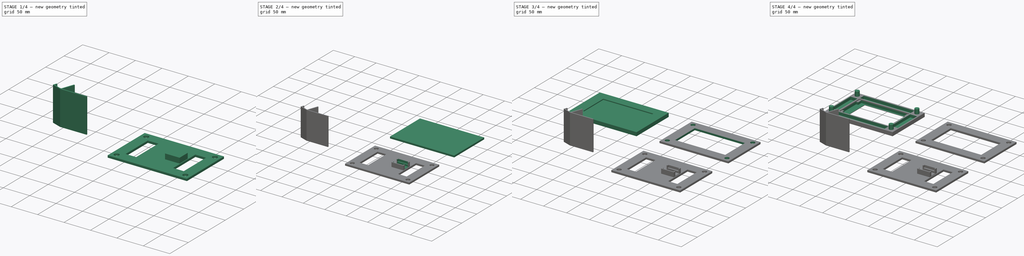
[diagram: build sequence overview — one tinted view per stage of 4, left to right]
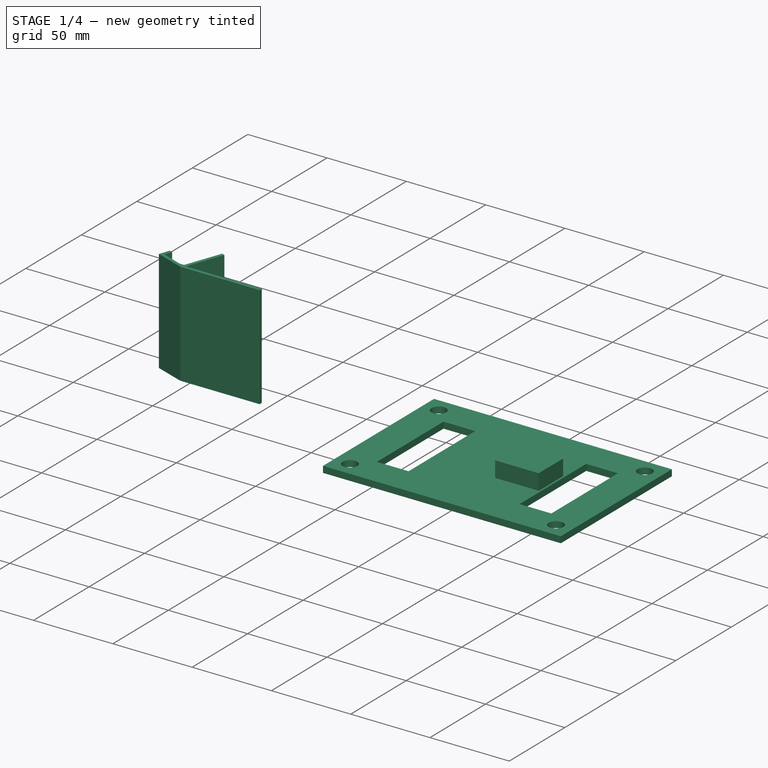
[diagram: stage 1 of 4 — iso view after this stage's code; geometry added in this stage tinted green]
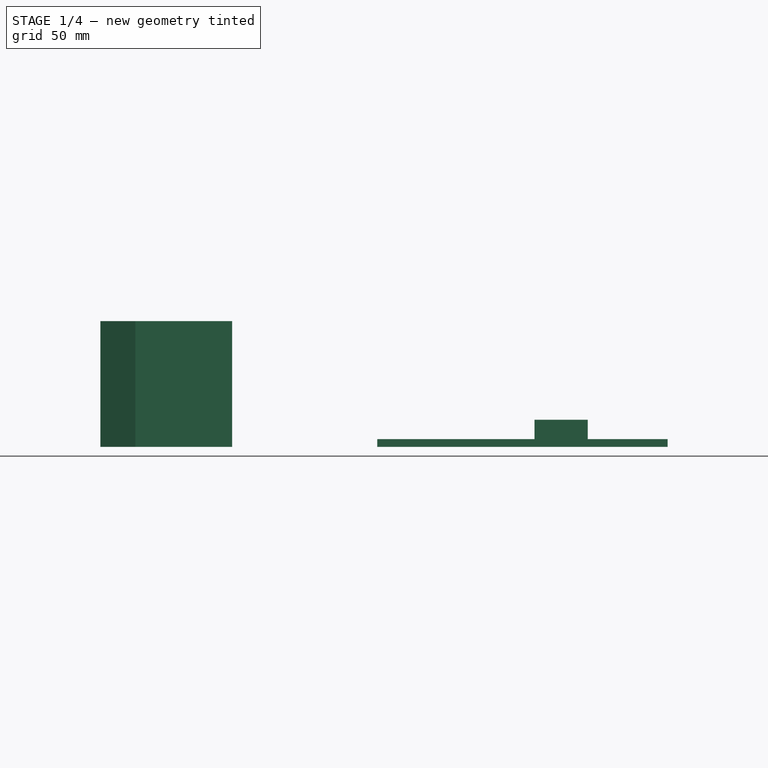
[diagram: stage 1 of 4 — front view after this stage's code; geometry added in this stage tinted green]
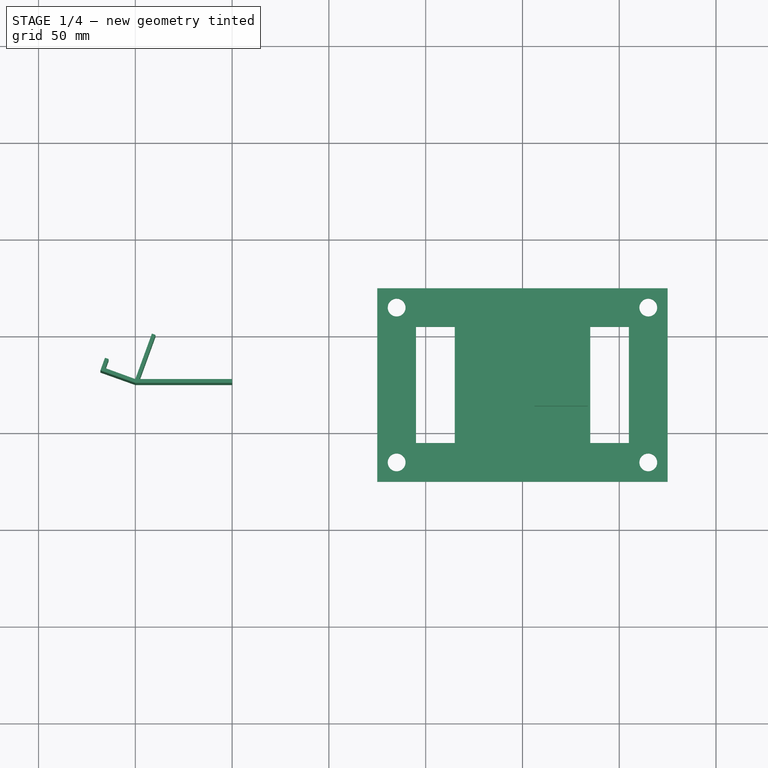
[diagram: stage 1 of 4 — top view after this stage's code; geometry added in this stage tinted green]
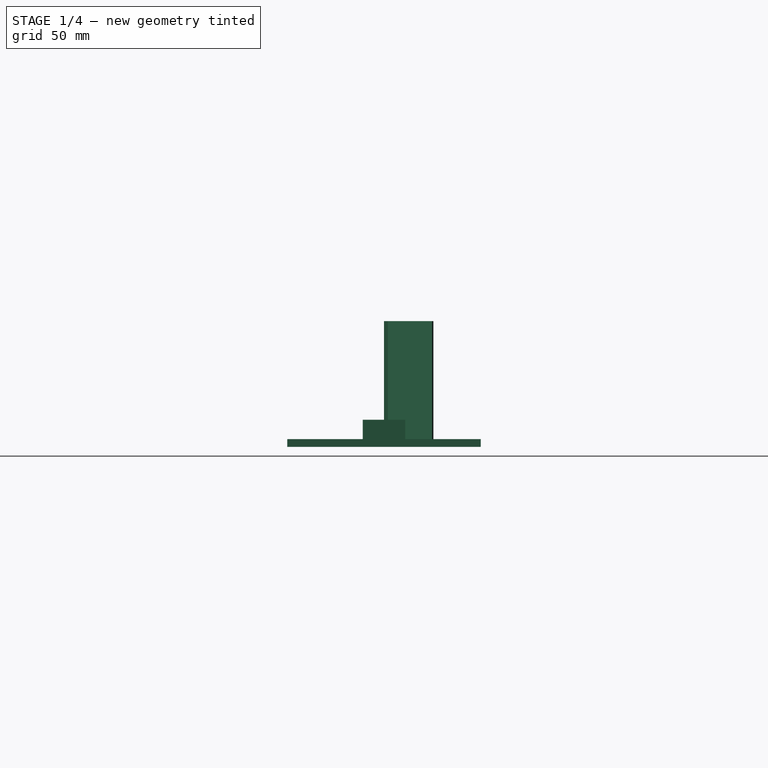
[diagram: stage 1 of 4 — right view after this stage's code; geometry added in this stage tinted green]
FCSTD DOCUMENT  (FreeCAD 0.21R33771 (Git))
Label: FrameLCD
License: All rights reserved
LicenseURL: https://en.wikipedia.org/wiki/All_rights_reserved
objects: Sketcher::SketchObject×14, PartDesign::Pocket×8, PartDesign::Pad×6, PartDesign::Body×4
note: 46 computed .brp shape members not serialized (recipe doc carries the construction recipe); baked Part::Feature solids carry a one-line shape summary decoded from their .brp

FEATURE [PartDesign::Body] Body001  label="Spacer"
  Group = -> [Sketch006,Pad002,Sketch010,Pocket004]
  Origin = -> Origin001
  Tip = -> Pocket004
FEATURE [Sketcher::SketchObject] Sketch011  label="BackSketch"
  FullyConstrained = true
  MapMode = 5
  Support = -> [XY_Plane002]
  sketch-geometry (4):
    g0: LineSegment StartX=175 StartY=-125 StartZ=0 EndX=25 EndY=-125 EndZ=0
    g1: LineSegment StartX=25 StartY=-125 StartZ=0 EndX=25 EndY=-25 EndZ=0
    g2: LineSegment StartX=25 StartY=-25 StartZ=0 EndX=175 EndY=-25 EndZ=0
    g3: LineSegment StartX=175 StartY=-25 StartZ=0 EndX=175 EndY=-125 EndZ=0
  constraints (12):
    c: Coincident(g0,g1)
    c: Coincident(g1,g2)
    c: Coincident(g2,g3)
    c: Coincident(g3,g0)
    c: Horizontal(g0)
    c: Horizontal(g2)
    c: Vertical(g1)
    c: Vertical(g3)
    c: Distance(g3) = 100
    c: Distance(g0) = 150
    c: DistanceX(g1,g-1) = -25
    c: DistanceY(g1,g-1) = 25
FEATURE [PartDesign::Pad] Pad003  label="BackPad"
  Direction = (0,0,1)
  Length = 4
  Length2 = 10
  Profile = -> Sketch011
  ReferenceAxis = -> Sketch011 [N_Axis]
  Type = 0
FEATURE [Sketcher::SketchObject] Sketch012  label="BackCutoutsSketch"
  ExternalGeometry = -> [Pad003]
  FullyConstrained = true
  MapMode = 5
  Placement = pos=(0,0,4) rot=(0,0,1;0rad)
  Support = -> [Pad003]
  sketch-geometry (13):
    g0: Circle CenterX=35 CenterY=-35 CenterZ=0 NormalX=0 NormalY=0 NormalZ=1 AngleXU=0 Radius=4.6
    g1: Circle CenterX=165 CenterY=-35 CenterZ=0 NormalX=0 NormalY=0 NormalZ=1 AngleXU=0 Radius=4.6
    g2: Circle CenterX=165 CenterY=-115 CenterZ=0 NormalX=0 NormalY=0 NormalZ=1 AngleXU=0 Radius=4.6
    g3: Circle CenterX=35 CenterY=-115 CenterZ=0 NormalX=0 NormalY=0 NormalZ=1 AngleXU=0 Radius=4.6
    g4: LineSegment StartX=45 StartY=-105 StartZ=0 EndX=45 EndY=-45 EndZ=0
    g5: LineSegment StartX=155 StartY=-45 StartZ=0 EndX=155 EndY=-105 EndZ=0
    g6: GeomPoint X=100 Y=-75 Z=0
    g7: LineSegment StartX=45 StartY=-45 StartZ=0 EndX=65 EndY=-45 EndZ=0
    g8: LineSegment StartX=135 StartY=-45 StartZ=0 EndX=155 EndY=-45 EndZ=0
    g9: LineSegment StartX=155 StartY=-105 StartZ=0 EndX=135 EndY=-105 EndZ=0
    g10: LineSegment StartX=65 StartY=-105 StartZ=0 EndX=45 EndY=-105 EndZ=0
    g11: LineSegment StartX=65 StartY=-45 StartZ=0 EndX=65 EndY=-105 EndZ=0
    g12: LineSegment StartX=135 StartY=-105 StartZ=0 EndX=135 EndY=-45 EndZ=0
  constraints (37):
    c: Equal(g0,g1)
    c: Equal(g0,g2)
    c: Equal(g0,g3)
    c: Radius(g0) = 4.6
    c: DistanceX(g0,g-4) = -10
    c: DistanceY(g0,g-4) = 10
    c: DistanceX(g3,g-5) = -10
    c: DistanceY(g3,g-5) = -10
    c: DistanceX(g-6,g2) = -10
    c: DistanceY(g-6,g2) = 10
    c: DistanceX(g1,g-6) = 10
    c: DistanceY(g1,g-6) = 10
    c: Coincident(g4,g7)
    c: Coincident(g5,g9)
    c: Coincident(g10,g4)
    c: Vertical(g4)
    c: Vertical(g5)
    c: Symmetric(g8,g4,g6)
    c: DistanceX(g4,g-4) = -20
    c: DistanceY(g4,g-4) = 20
    c: DistanceX(g5,g-6) = 20
    c: DistanceY(g5,g-6) = -20
    c: Coincident(g8,g5)
    c: Horizontal(g7)
    c: Horizontal(g8)
    c: Horizontal(g9)
    c: Horizontal(g10)
    c: Vertical(g11)
    c: Vertical(g12)
    c: Coincident(g12,g8)
    c: Coincident(g11,g7)
    c: Coincident(g11,g10)
    c: Coincident(g12,g9)
    c: Distance(g7) = 20
    c: Distance(g8) = 20
    c: DistanceY(g5,g-6) = 20
    c: DistanceY(g4,g-5) = -20
FEATURE [PartDesign::Pocket] Pocket005  label="BackCutoutsPocket"
  BaseFeature = -> Pad003
  Direction = (0,0,-1)
  Length = 5
  Length2 = 5
  Profile = -> Sketch012
  ReferenceAxis = -> Sketch012 [N_Axis]
  Type = 1
FEATURE [Sketcher::SketchObject] Sketch013  label="BackMountSketch"
  ExternalGeometry = -> [Pad003]
  FullyConstrained = true
  MapMode = 5
  Placement = pos=(0,0,4) rot=(0,0,1;0rad)
  Support = -> [Pad003]
  sketch-geometry (5):
    g0: LineSegment StartX=106.25 StartY=-64 StartZ=0 EndX=106.25 EndY=-86 EndZ=0
    g1: LineSegment StartX=106.25 StartY=-86 StartZ=0 EndX=133.75 EndY=-86 EndZ=0
    g2: LineSegment StartX=133.75 StartY=-86 StartZ=0 EndX=133.75 EndY=-64 EndZ=0
    g3: LineSegment StartX=133.75 StartY=-64 StartZ=0 EndX=106.25 EndY=-64 EndZ=0
    g4: GeomPoint X=120 Y=-75 Z=0
  constraints (13):
    c: Coincident(g0,g1)
    c: Coincident(g1,g2)
    c: Coincident(g2,g3)
    c: Coincident(g3,g0)
    c: Horizontal(g1)
    c: Horizontal(g3)
    c: Vertical(g0)
    c: Vertical(g2)
    c: Symmetric(g1,g0,g4)
    c: DistanceX(g4,g-4) = 55
    c: DistanceY(g4,g-4) = 50
    c: Distance(g3) = 27.5
    c: Distance(g2) = 22
FEATURE [PartDesign::Pad] Pad004  label="BackMountPad"
  BaseFeature = -> Pocket005
  Direction = (0,0,1)
  Length = 10
  Length2 = 10
  Profile = -> Sketch013
  ReferenceAxis = -> Sketch013 [N_Axis]
  Type = 0
FEATURE [PartDesign::Body] Body002  label="Back"
  Group = -> [Sketch011,Pad003,Sketch012,Pocket005,Sketch013,Pad004,Sketch014,Pocket006,Sketch015,Pocket007]
  Origin = -> Origin002
  Tip = -> Pocket007
FEATURE [Sketcher::SketchObject] Sketch017  label="StandSketch"
  FullyConstrained = true
  MapMode = 5
  Support = -> [XY_Plane004]
  sketch-geometry (11):
    g0: LineSegment StartX=-100 StartY=-75 StartZ=0 EndX=-50 EndY=-75 EndZ=0
    g1: LineSegment StartX=-50 StartY=-75 StartZ=0 EndX=-50 EndY=-73 EndZ=0
    g2: LineSegment StartX=-50 StartY=-73 StartZ=0 EndX=-97.8717 EndY=-73 EndZ=0
    g3: LineSegment StartX=-97.8717 StartY=-73 StartZ=0 EndX=-89.5701 EndY=-50.1917 EndZ=0
    g4: LineSegment StartX=-89.5701 StartY=-50.1917 StartZ=0 EndX=-91.4495 EndY=-49.5077 EndZ=0
    g5: LineSegment StartX=-91.4495 StartY=-49.5077 StartZ=0 EndX=-100 EndY=-73 EndZ=0
    g6: LineSegment StartX=-100 StartY=-73 StartZ=0 EndX=-115.505 EndY=-67.3567 EndZ=0
    g7: LineSegment StartX=-118.068 StartY=-68.552 StartZ=0 EndX=-100 EndY=-75 EndZ=0
    g8: LineSegment StartX=-118.068 StartY=-68.552 StartZ=0 EndX=-115.674 EndY=-61.9742 EndZ=0
    g9: LineSegment StartX=-115.674 StartY=-61.9742 StartZ=0 EndX=-113.795 EndY=-62.6582 EndZ=0
    g10: LineSegment StartX=-113.795 StartY=-62.6582 StartZ=0 EndX=-115.505 EndY=-67.3567 EndZ=0
  constraints (33):
    c: Horizontal(g0)
    c: Coincident(g0,g1)
    c: Vertical(g1)
    c: Coincident(g1,g2)
    c: Horizontal(g2)
    c: Coincident(g2,g3)
    c: Coincident(g3,g4)
    c: Coincident(g4,g5)
    c: Coincident(g5,g6)
    c: Coincident(g0,g7)
    c: Distance(g4) = 2
    c: Distance(g1) = 2
    c: Distance(g0) = 50
    c: Coincident(g8,g9)
    c: Coincident(g9,g10)
    c: Coincident(g6,g10)
    c: Coincident(g7,g8)
    c: Distance(g9) = 2
    c: Distance(g10) = 5
    c: Distance(g5) = 25
    c: Angle(g5,g6) = 1.5708
    c: DistanceY(g2,g5) = 0
    c: Angle(g6,g10) = 1.5708
    c: Distance(g8) = 7
    c: Angle(g9,g10) = 1.5708
    c: Angle(g8,g9) = 1.5708
    c: Angle(g5,g4) = 1.5708
    c: Angle(g4,g3) = 1.5708
    c: Distance(g6) = 16.5
    c: Distance(g0,g5) = 2
    c: Angle(g2,g3) = 1.22173
    c: DistanceX(g0,g-1) = 100
    c: DistanceY(g0,g-1) = 75
FEATURE [PartDesign::Pad] Pad005  label="StandPad"
  Direction = (0,0,1)
  Length = 65
  Length2 = 10
  Profile = -> Sketch017
  ReferenceAxis = -> Sketch017 [N_Axis]
  Type = 0
FEATURE [PartDesign::Body] Body004  label="Stand"
  Group = -> [Sketch017,Pad005]
  Origin = -> Origin004
  Tip = -> Pad005
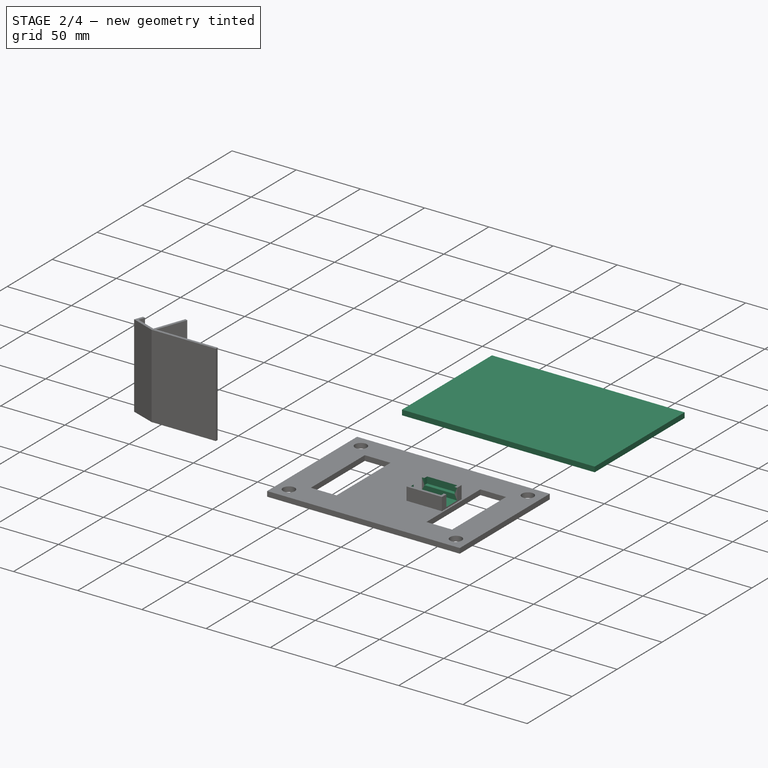
[diagram: stage 2 of 4 — iso view after this stage's code; geometry added in this stage tinted green]
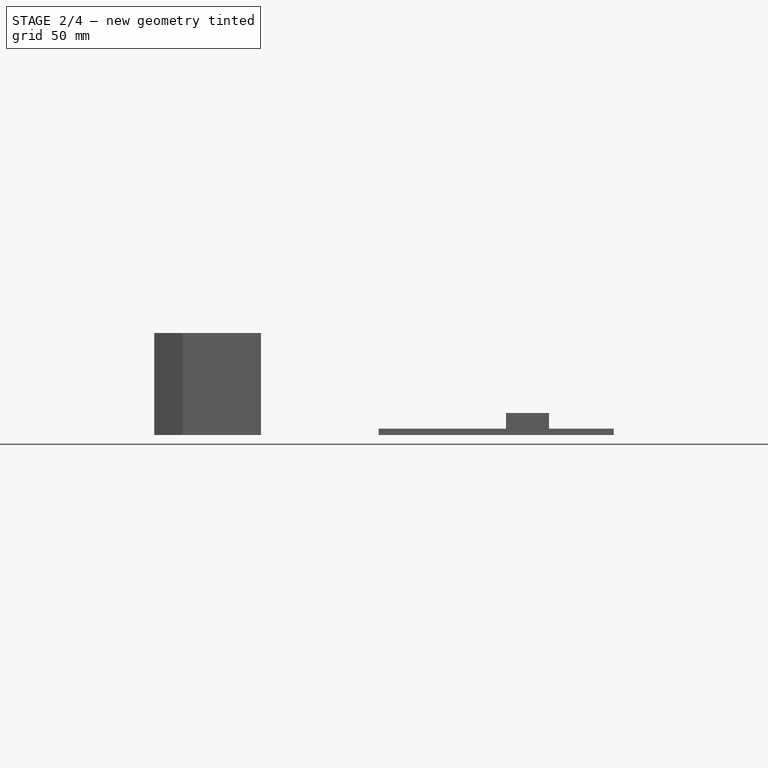
[diagram: stage 2 of 4 — front view after this stage's code; geometry added in this stage tinted green]
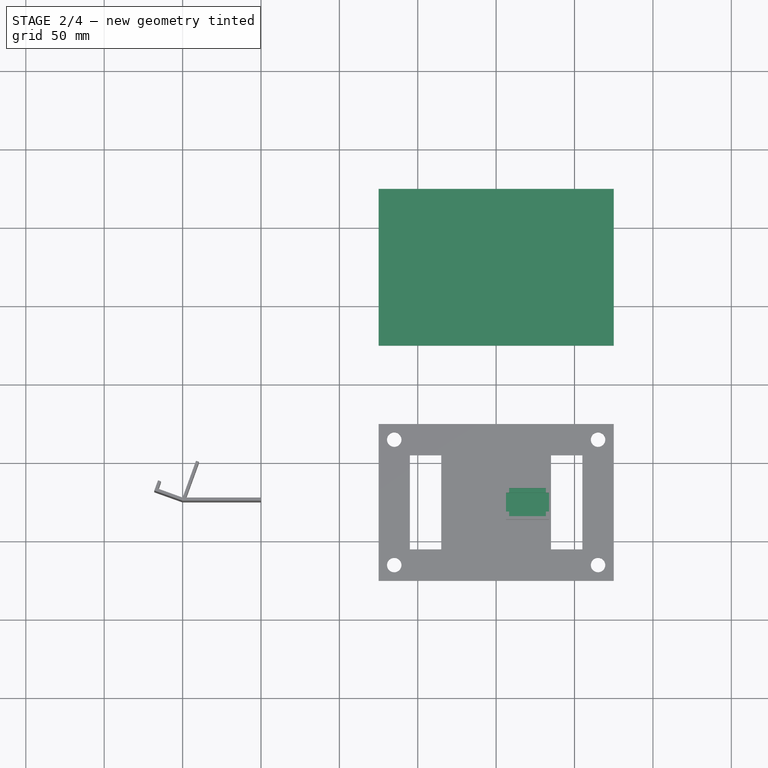
[diagram: stage 2 of 4 — top view after this stage's code; geometry added in this stage tinted green]
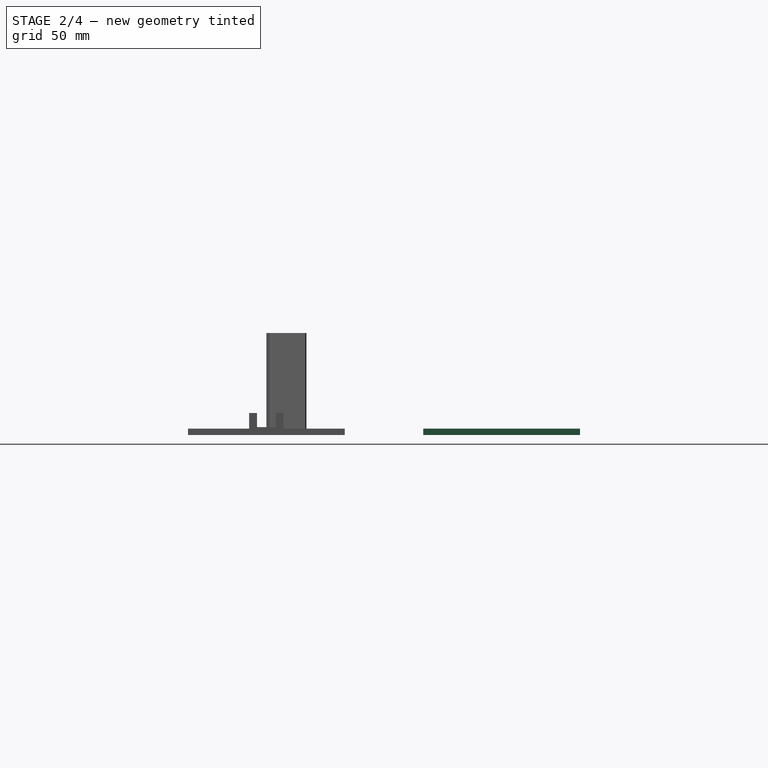
[diagram: stage 2 of 4 — right view after this stage's code; geometry added in this stage tinted green]
FEATURE [PartDesign::Body] Body  label="Front"
  Group = -> [Sketch,Pad,Sketch001,Pocket,Sketch002,Pocket001,Sketch003,Pocket002,Sketch004,Pad001,Sketch005,Pocket003]
  Origin = -> Origin
  Tip = -> Pocket003
FEATURE [Sketcher::SketchObject] Sketch006  label="SpacerSketch"
  FullyConstrained = true
  MapMode = 5
  Support = -> [XY_Plane001]
  sketch-geometry (4):
    g0: LineSegment StartX=175 StartY=25 StartZ=0 EndX=25 EndY=25 EndZ=0
    g1: LineSegment StartX=25 StartY=25 StartZ=0 EndX=25 EndY=125 EndZ=0
    g2: LineSegment StartX=25 StartY=125 StartZ=0 EndX=175 EndY=125 EndZ=0
    g3: LineSegment StartX=175 StartY=125 StartZ=0 EndX=175 EndY=25 EndZ=0
  constraints (12):
    c: Coincident(g0,g1)
    c: Coincident(g1,g2)
    c: Coincident(g2,g3)
    c: Coincident(g3,g0)
    c: Horizontal(g0)
    c: Horizontal(g2)
    c: Vertical(g1)
    c: Vertical(g3)
    c: Distance(g3) = 100
    c: Distance(g0) = 150
    c: DistanceX(g0,g-1) = -25
    c: DistanceY(g0,g-1) = -25
FEATURE [PartDesign::Pad] Pad002  label="SpacerPad"
  Direction = (0,0,1)
  Length = 4
  Length2 = 10
  Profile = -> Sketch006
  ReferenceAxis = -> Sketch006 [N_Axis]
  Type = 0
FEATURE [Sketcher::SketchObject] Sketch014  label="BackMountCut1Sketch"
  ExternalGeometry = -> [Pad004]
  FullyConstrained = true
  MapMode = 5
  Placement = pos=(0,0,14) rot=(0,0,1;0rad)
  Support = -> [Pad004]
  sketch-geometry (4):
    g0: LineSegment StartX=108.25 StartY=-66 StartZ=0 EndX=131.75 EndY=-66 EndZ=0
    g1: LineSegment StartX=131.75 StartY=-66 StartZ=0 EndX=131.75 EndY=-84 EndZ=0
    g2: LineSegment StartX=131.75 StartY=-84 StartZ=0 EndX=108.25 EndY=-84 EndZ=0
    g3: LineSegment StartX=108.25 StartY=-84 StartZ=0 EndX=108.25 EndY=-66 EndZ=0
  constraints (12):
    c: Coincident(g0,g1)
    c: Coincident(g1,g2)
    c: Coincident(g2,g3)
    c: Coincident(g3,g0)
    c: Horizontal(g0)
    c: Horizontal(g2)
    c: Vertical(g1)
    c: Vertical(g3)
    c: DistanceX(g0,g-6) = -2
    c: DistanceY(g0,g-6) = 2
    c: DistanceX(g1,g-5) = 2
    c: DistanceY(g1,g-5) = -2
FEATURE [PartDesign::Pocket] Pocket006  label="BackMountCut1Pocket"
  BaseFeature = -> Pad004
  Direction = (0,0,-1)
  Length = 5
  Length2 = 5
  Profile = -> Sketch014
  ReferenceAxis = -> Sketch014 [N_Axis]
  Type = 0
FEATURE [Sketcher::SketchObject] Sketch015  label="BackMountCut2Sketch"
  ExternalGeometry = -> [Pocket006]
  FullyConstrained = true
  MapMode = 5
  Placement = pos=(0,0,14) rot=(0,0,1;0rad)
  Support = -> [Pocket006]
  sketch-geometry (4):
    g0: LineSegment StartX=106.25 StartY=-69 StartZ=0 EndX=133.75 EndY=-69 EndZ=0
    g1: LineSegment StartX=133.75 StartY=-69 StartZ=0 EndX=133.75 EndY=-81 EndZ=0
    g2: LineSegment StartX=133.75 StartY=-81 StartZ=0 EndX=106.25 EndY=-81 EndZ=0
    g3: LineSegment StartX=106.25 StartY=-81 StartZ=0 EndX=106.25 EndY=-69 EndZ=0
  constraints (12):
    c: Coincident(g0,g1)
    c: Coincident(g1,g2)
    c: Coincident(g2,g3)
    c: Coincident(g3,g0)
    c: Horizontal(g0)
    c: Horizontal(g2)
    c: Vertical(g1)
    c: Vertical(g3)
    c: DistanceY(g0,g-4) = 5
    c: PointOnObject(g0,g-4)
    c: DistanceY(g-5,g2) = 5
    c: PointOnObject(g0,g-6)
FEATURE [PartDesign::Pocket] Pocket007  label="BackMountCut2Pocket"
  BaseFeature = -> Pocket006
  Direction = (0,0,-1)
  Length = 9
  Length2 = 5
  Profile = -> Sketch015
  ReferenceAxis = -> Sketch015 [N_Axis]
  Type = 0
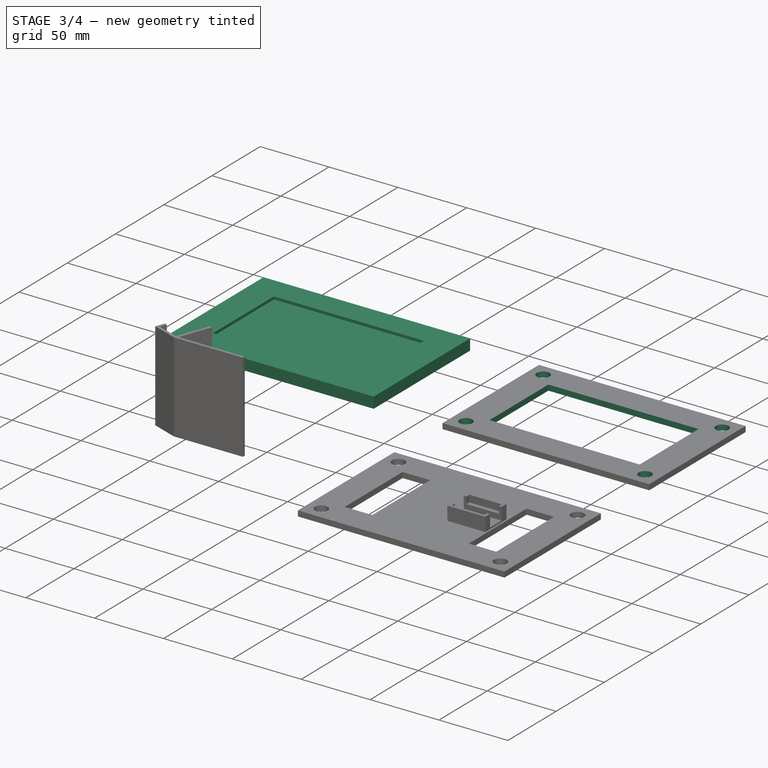
[diagram: stage 3 of 4 — iso view after this stage's code; geometry added in this stage tinted green]
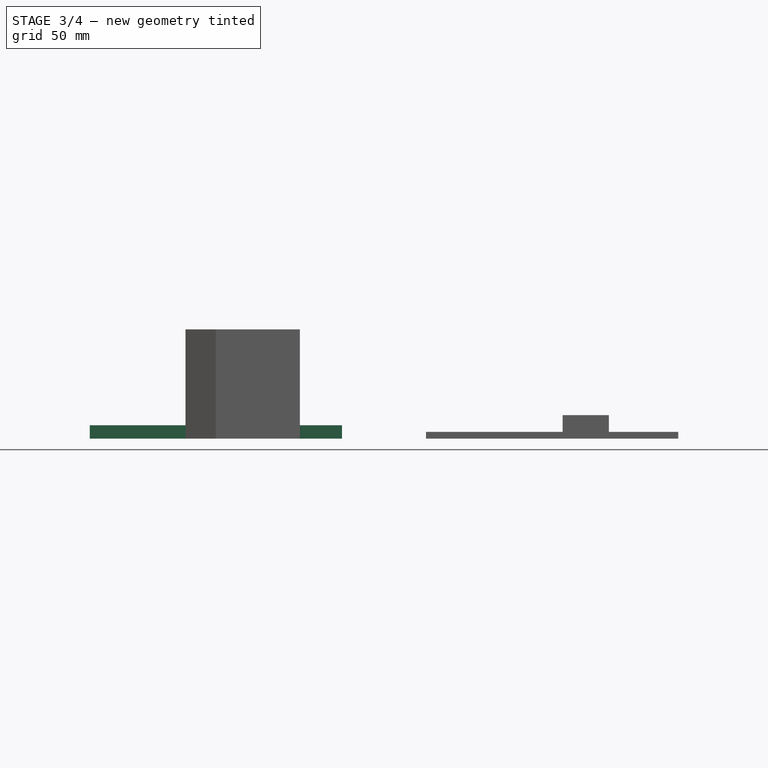
[diagram: stage 3 of 4 — front view after this stage's code; geometry added in this stage tinted green]
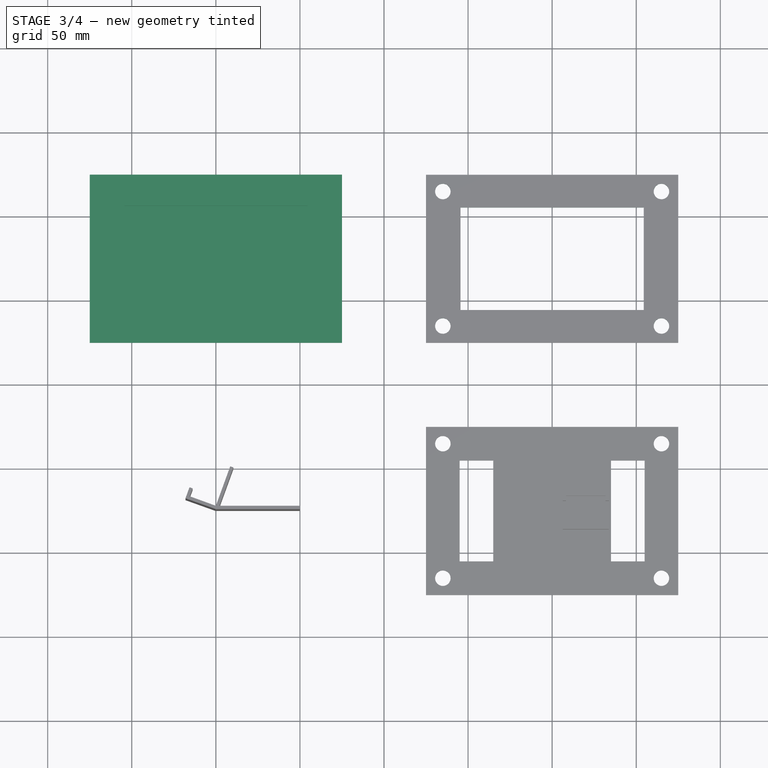
[diagram: stage 3 of 4 — top view after this stage's code; geometry added in this stage tinted green]
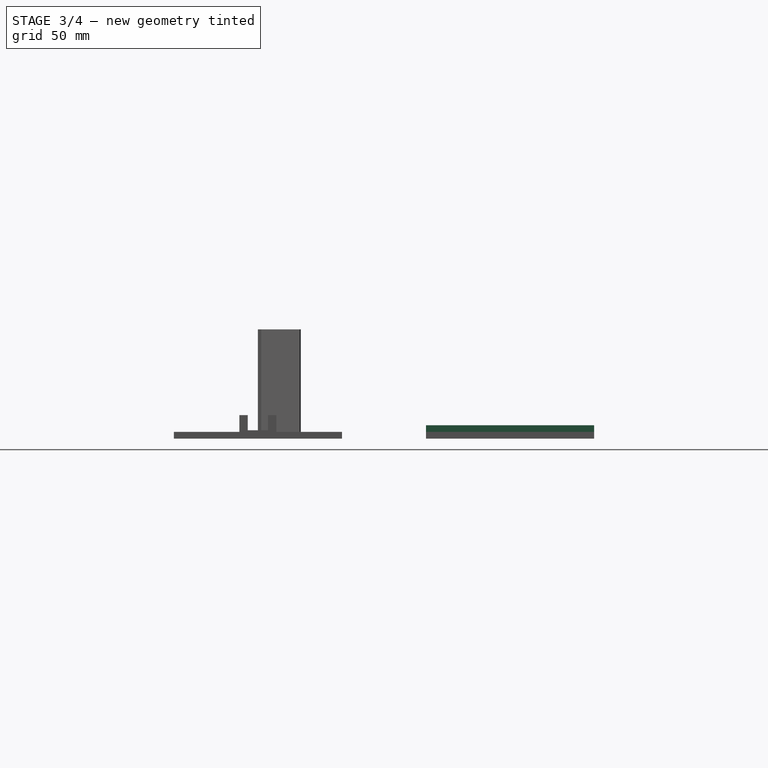
[diagram: stage 3 of 4 — right view after this stage's code; geometry added in this stage tinted green]
FEATURE [Sketcher::SketchObject] Sketch  label="FrontSketch"
  FullyConstrained = true
  MapMode = 5
  Support = -> [XY_Plane]
  sketch-geometry (4):
    g0: LineSegment StartX=-25 StartY=25 StartZ=0 EndX=-175 EndY=25 EndZ=0
    g1: LineSegment StartX=-175 StartY=25 StartZ=0 EndX=-175 EndY=125 EndZ=0
    g2: LineSegment StartX=-175 StartY=125 StartZ=0 EndX=-25 EndY=125 EndZ=0
    g3: LineSegment StartX=-25 StartY=125 StartZ=0 EndX=-25 EndY=25 EndZ=0
  constraints (12):
    c: Coincident(g0,g1)
    c: Coincident(g1,g2)
    c: Coincident(g2,g3)
    c: Coincident(g3,g0)
    c: Horizontal(g0)
    c: Horizontal(g2)
    c: Vertical(g1)
    c: Vertical(g3)
    c: DistanceX(g0,g-1) = 25
    c: DistanceY(g-1,g0) = 25
    c: Distance(g3) = 100
    c: Distance(g0) = 150
FEATURE [PartDesign::Pad] Pad  label="FrontPad"
  Direction = (0,0,1)
  Length = 8
  Length2 = 10
  Profile = -> Sketch
  ReferenceAxis = -> Sketch [N_Axis]
  Type = 0
FEATURE [Sketcher::SketchObject] Sketch001  label="BoardRecessSketch"
  ExternalGeometry = -> [Pad]
  FullyConstrained = true
  MapMode = 5
  Placement = pos=(0,0,8) rot=(0,0,1;0rad)
  Support = -> [Pad]
  sketch-geometry (5):
    g0: LineSegment StartX=-154.5 StartY=106.5 StartZ=0 EndX=-154.5 EndY=43.5 EndZ=0
    g1: LineSegment StartX=-154.5 StartY=43.5 StartZ=0 EndX=-45.5 EndY=43.5 EndZ=0
    g2: LineSegment StartX=-45.5 StartY=43.5 StartZ=0 EndX=-45.5 EndY=106.5 EndZ=0
    g3: LineSegment StartX=-45.5 StartY=106.5 StartZ=0 EndX=-154.5 EndY=106.5 EndZ=0
    g4: GeomPoint X=-100 Y=75 Z=0
  constraints (13):
    c: Coincident(g0,g1)
    c: Coincident(g1,g2)
    c: Coincident(g2,g3)
    c: Coincident(g3,g0)
    c: Horizontal(g1)
    c: Horizontal(g3)
    c: Vertical(g0)
    c: Vertical(g2)
    c: Symmetric(g1,g0,g4)
    c: DistanceX(g4,g-6) = 75
    c: DistanceY(g-6,g4) = 50
    c: Distance(g0) = 63
    c: Distance(g3) = 109
FEATURE [PartDesign::Pocket] Pocket  label="BoardRecessPocket"
  BaseFeature = -> Pad
  Direction = (0,0,-1)
  Length = 2
  Length2 = 5
  Profile = -> Sketch001
  ReferenceAxis = -> Sketch001 [N_Axis]
  Type = 0
FEATURE [Sketcher::SketchObject] Sketch010  label="SpacerCutoutsSketch"
  ExternalGeometry = -> [Pad002]
  FullyConstrained = true
  MapMode = 5
  Placement = pos=(0,0,4) rot=(0,0,1;0rad)
  Support = -> [Pad002]
  sketch-geometry (9):
    g0: Circle CenterX=35 CenterY=115 CenterZ=0 NormalX=0 NormalY=0 NormalZ=1 AngleXU=0 Radius=4.6
    g1: Circle CenterX=165 CenterY=115 CenterZ=0 NormalX=0 NormalY=0 NormalZ=1 AngleXU=0 Radius=4.6
    g2: Circle CenterX=165 CenterY=35 CenterZ=0 NormalX=0 NormalY=0 NormalZ=1 AngleXU=0 Radius=4.6
    g3: Circle CenterX=35 CenterY=35 CenterZ=0 NormalX=0 NormalY=0 NormalZ=1 AngleXU=0 Radius=4.6
    g4: LineSegment StartX=45.5 StartY=44.5 StartZ=0 EndX=45.5 EndY=105.5 EndZ=0
    g5: LineSegment StartX=45.5 StartY=105.5 StartZ=0 EndX=154.5 EndY=105.5 EndZ=0
    g6: LineSegment StartX=154.5 StartY=105.5 StartZ=0 EndX=154.5 EndY=44.5 EndZ=0
    g7: LineSegment StartX=154.5 StartY=44.5 StartZ=0 EndX=45.5 EndY=44.5 EndZ=0
    g8: GeomPoint X=100 Y=75 Z=0
  constraints (25):
    c: Equal(g0,g1)
    c: Equal(g0,g2)
    c: Equal(g0,g3)
    c: Radius(g0) = 4.6
    c: DistanceX(g0,g-4) = -10
    c: DistanceY(g0,g-4) = 10
    c: DistanceX(g3,g-5) = -10
    c: DistanceY(g3,g-5) = -10
    c: DistanceX(g-6,g2) = -10
    c: DistanceY(g-6,g2) = 10
    c: DistanceX(g1,g-6) = 10
    c: DistanceY(g1,g-6) = 10
    c: Coincident(g4,g5)
    c: Coincident(g6,g7)
    c: Coincident(g7,g4)
    c: Horizontal(g5)
    c: Horizontal(g7)
    c: Vertical(g4)
    c: Vertical(g6)
    c: Symmetric(g5,g4,g8)
    c: DistanceX(g4,g-4) = -20.5
    c: DistanceY(g4,g-4) = 19.5
    c: DistanceX(g6,g-6) = 20.5
    c: DistanceY(g6,g-6) = -19.5
    c: Coincident(g5,g6)
FEATURE [PartDesign::Pocket] Pocket004  label="SpacerCutoutsPocket"
  BaseFeature = -> Pad002
  Direction = (0,0,-1)
  Length = 5
  Length2 = 5
  Profile = -> Sketch010
  ReferenceAxis = -> Sketch010 [N_Axis]
  Type = 1
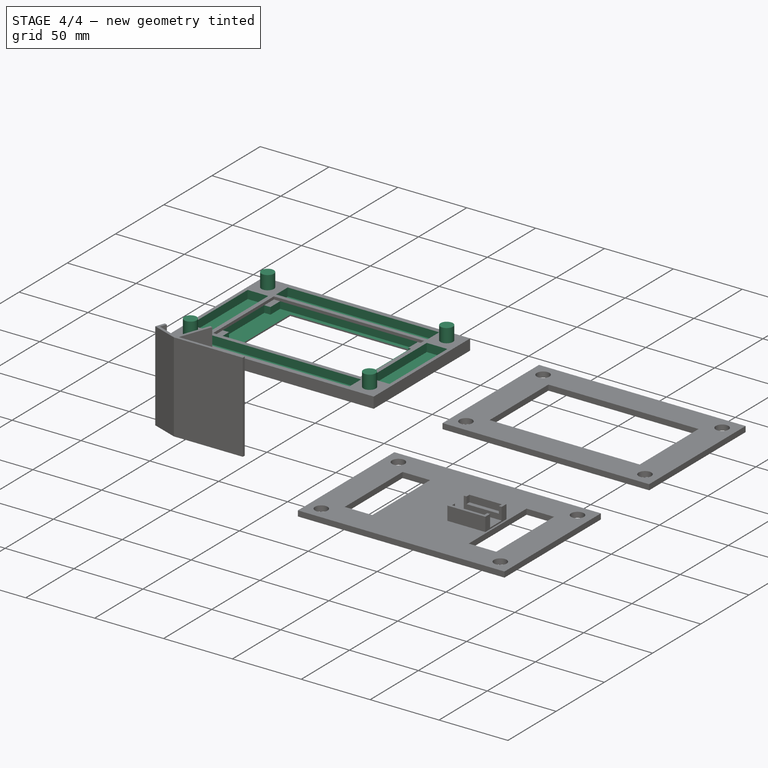
[diagram: stage 4 of 4 — iso view after this stage's code; geometry added in this stage tinted green]
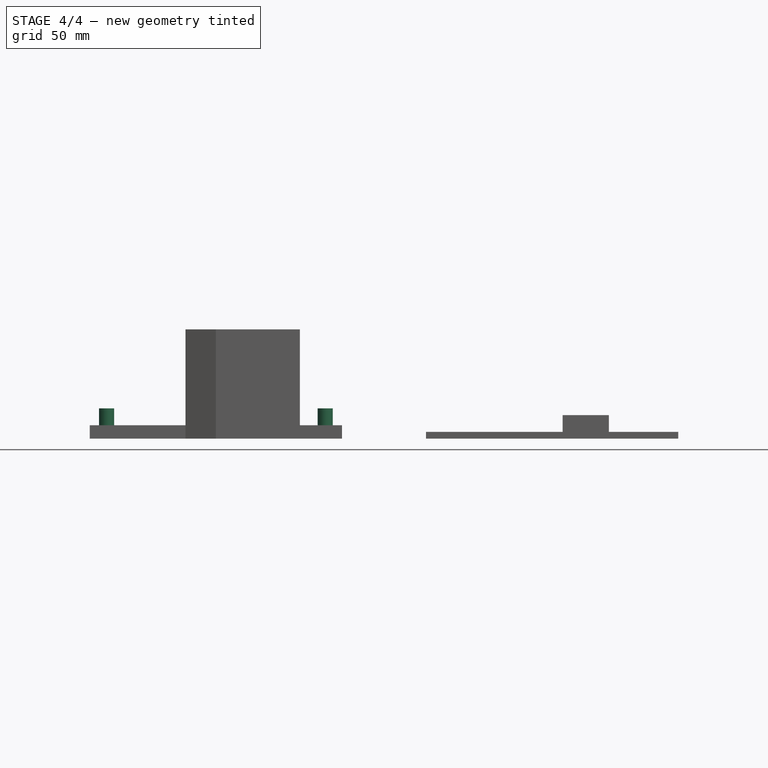
[diagram: stage 4 of 4 — front view after this stage's code; geometry added in this stage tinted green]
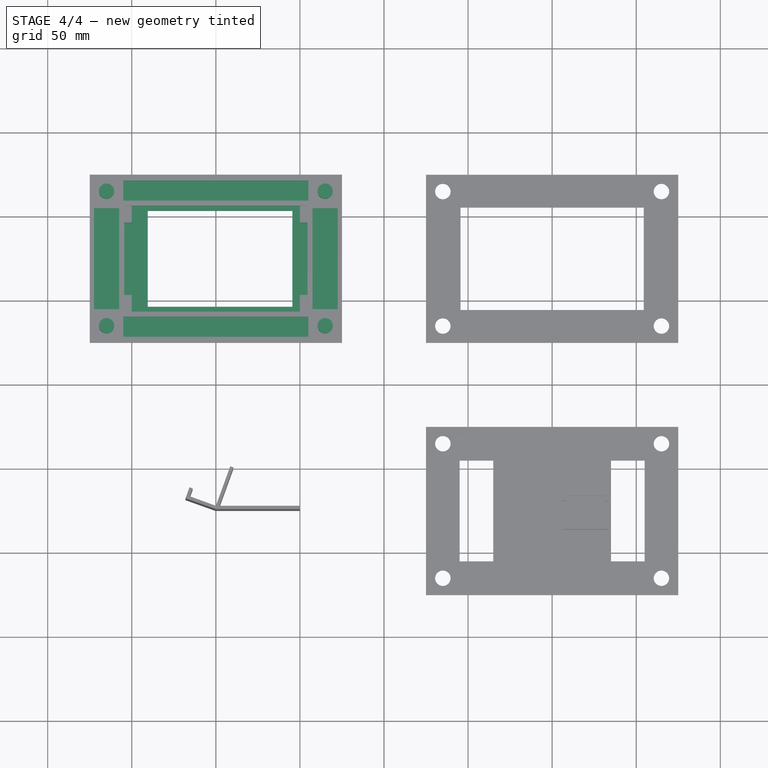
[diagram: stage 4 of 4 — top view after this stage's code; geometry added in this stage tinted green]
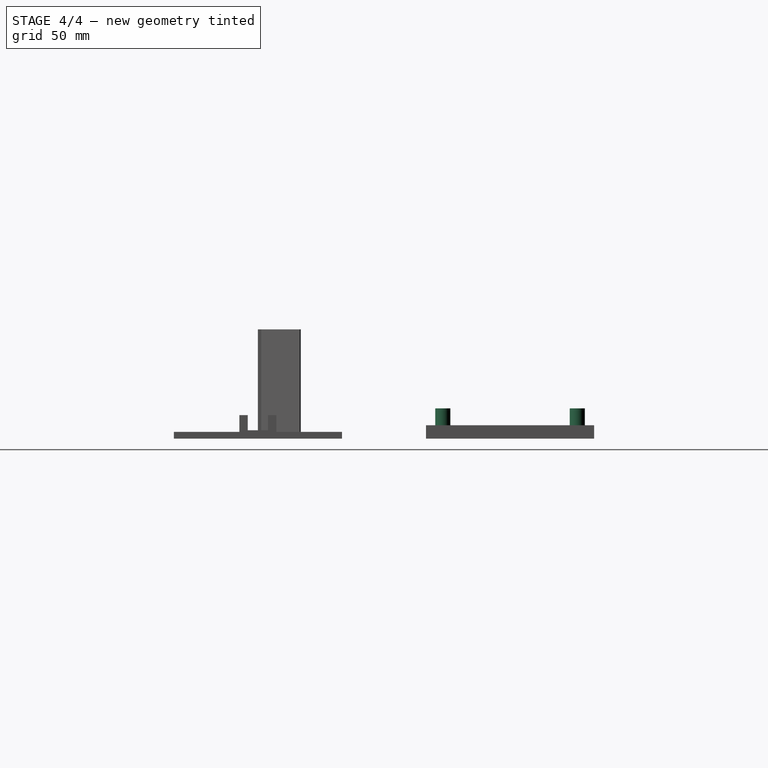
[diagram: stage 4 of 4 — right view after this stage's code; geometry added in this stage tinted green]
FEATURE [Sketcher::SketchObject] Sketch002  label="ScreenRecessSketch"
  ExternalGeometry = -> [Pocket]
  FullyConstrained = true
  MapMode = 5
  Placement = pos=(0,0,6) rot=(0,0,1;0rad)
  Support = -> [Pocket]
  sketch-geometry (13):
    g0: LineSegment StartX=-150 StartY=43.5 StartZ=0 EndX=-50 EndY=43.5 EndZ=0
    g1: LineSegment StartX=-50 StartY=106.5 StartZ=0 EndX=-150 EndY=106.5 EndZ=0
    g2: GeomPoint X=-100 Y=75 Z=0
    g3: LineSegment StartX=-50 StartY=96.5 StartZ=0 EndX=-50 EndY=106.5 EndZ=0
    g4: LineSegment StartX=-150 StartY=106.5 StartZ=0 EndX=-150 EndY=96.5 EndZ=0
    g5: LineSegment StartX=-150 StartY=53.5 StartZ=0 EndX=-150 EndY=43.5 EndZ=0
    g6: LineSegment StartX=-50 StartY=43.5 StartZ=0 EndX=-50 EndY=53.5 EndZ=0
    g7: LineSegment StartX=-150 StartY=96.5 StartZ=0 EndX=-154.5 EndY=96.5 EndZ=0
    g8: LineSegment StartX=-154.5 StartY=96.5 StartZ=0 EndX=-154.5 EndY=53.5 EndZ=0
    g9: LineSegment StartX=-154.5 StartY=53.5 StartZ=0 EndX=-150 EndY=53.5 EndZ=0
    g10: LineSegment StartX=-45.5 StartY=96.5 StartZ=0 EndX=-50 EndY=96.5 EndZ=0
    g11: LineSegment StartX=-50 StartY=53.5 StartZ=0 EndX=-45.5 EndY=53.5 EndZ=0
    g12: LineSegment StartX=-45.5 StartY=53.5 StartZ=0 EndX=-45.5 EndY=96.5 EndZ=0
  constraints (37):
    c: Coincident(g5,g0)
    c: Coincident(g0,g6)
    c: Coincident(g3,g1)
    c: Coincident(g1,g4)
    c: Horizontal(g0)
    c: Horizontal(g1)
    c: Symmetric(g0,g4,g2)
    c: PointOnObject(g0,g-6)
    c: PointOnObject(g3,g-3)
    c: Coincident(g10,g3)
    c: Vertical(g3)
    c: Coincident(g4,g7)
    c: Vertical(g4)
    c: Coincident(g9,g5)
    c: Vertical(g5)
    c: Coincident(g6,g11)
    c: Vertical(g6)
    c: Distance(g4) = 10
    c: Distance(g5) = 10
    c: Distance(g3) = 10
    c: Distance(g6) = 10
    c: Coincident(g7,g8)
    c: Coincident(g8,g9)
    c: Coincident(g12,g10)
    c: Coincident(g11,g12)
    c: Horizontal(g7)
    c: Horizontal(g9)
    c: Horizontal(g11)
    c: Horizontal(g10)
    c: Vertical(g12)
    c: Vertical(g8)
    c: PointOnObject(g7,g-4)
    c: PointOnObject(g10,g-5)
    c: Distance(g7) = 4.5
    c: Distance(g9) = 4.5
    c: Distance(g11) = 4.5
    c: Distance(g10) = 4.5
FEATURE [PartDesign::Pocket] Pocket001  label="ScreenRecessPocket"
  BaseFeature = -> Pocket
  Direction = (0,0,-1)
  Length = 5
  Length2 = 5
  Profile = -> Sketch002
  ReferenceAxis = -> Sketch002 [N_Axis]
  Type = 0
FEATURE [Sketcher::SketchObject] Sketch003  label="DisplayAreaSketch"
  ExternalGeometry = -> [Pocket001]
  FullyConstrained = true
  MapMode = 5
  Placement = pos=(0,0,1) rot=(0,0,1;0rad)
  Support = -> [Pocket001]
  sketch-geometry (5):
    g0: LineSegment StartX=-140.5 StartY=103.5 StartZ=0 EndX=-140.5 EndY=46.5 EndZ=0
    g1: LineSegment StartX=-140.5 StartY=46.5 StartZ=0 EndX=-54.5 EndY=46.5 EndZ=0
    g2: LineSegment StartX=-54.5 StartY=46.5 StartZ=0 EndX=-54.5 EndY=103.5 EndZ=0
    g3: LineSegment StartX=-54.5 StartY=103.5 StartZ=0 EndX=-140.5 EndY=103.5 EndZ=0
    g4: GeomPoint X=-97.5 Y=75 Z=0
  constraints (13):
    c: Coincident(g0,g1)
    c: Coincident(g1,g2)
    c: Coincident(g2,g3)
    c: Coincident(g3,g0)
    c: Horizontal(g1)
    c: Horizontal(g3)
    c: Vertical(g0)
    c: Vertical(g2)
    c: Symmetric(g1,g0,g4)
    c: DistanceX(g2,g-3) = 9
    c: DistanceX(g-5,g0) = 14
    c: DistanceY(g-7,g0) = 3
    c: DistanceY(g2,g-8) = 3
FEATURE [PartDesign::Pocket] Pocket002  label="DisplayAreaPocket"
  BaseFeature = -> Pocket001
  Direction = (0,0,-1)
  Length = 5
  Length2 = 5
  Profile = -> Sketch003
  ReferenceAxis = -> Sketch003 [N_Axis]
  Type = 2
FEATURE [Sketcher::SketchObject] Sketch004  label="PostsSketch"
  ExternalGeometry = -> [Pocket002]
  FullyConstrained = true
  MapMode = 5
  Placement = pos=(0,0,8) rot=(0,0,1;0rad)
  Support = -> [Pocket002]
  sketch-geometry (4):
    g0: Circle CenterX=-165 CenterY=115 CenterZ=0 NormalX=0 NormalY=0 NormalZ=1 AngleXU=0 Radius=4.5
    g1: Circle CenterX=-35 CenterY=115 CenterZ=0 NormalX=0 NormalY=0 NormalZ=1 AngleXU=0 Radius=4.5
    g2: Circle CenterX=-35 CenterY=35 CenterZ=0 NormalX=0 NormalY=0 NormalZ=1 AngleXU=0 Radius=4.5
    g3: Circle CenterX=-165 CenterY=35 CenterZ=0 NormalX=0 NormalY=0 NormalZ=1 AngleXU=0 Radius=4.5
  constraints (12):
    c: Equal(g0,g1)
    c: Equal(g0,g2)
    c: Equal(g0,g3)
    c: Radius(g0) = 4.5
    c: DistanceX(g0,g-4) = -10
    c: DistanceY(g0,g-4) = 10
    c: DistanceX(g1,g-6) = 10
    c: DistanceY(g1,g-6) = 10
    c: DistanceX(g-5,g3) = 10
    c: DistanceY(g-5,g3) = 10
    c: DistanceX(g2,g-6) = 10
    c: DistanceY(g2,g-6) = -10
FEATURE [PartDesign::Pad] Pad001  label="PostsPad"
  BaseFeature = -> Pocket002
  Direction = (0,0,1)
  Length = 10
  Length2 = 10
  Profile = -> Sketch004
  ReferenceAxis = -> Sketch004 [N_Axis]
  Type = 0
FEATURE [Sketcher::SketchObject] Sketch005  label="CutoutsSketch"
  ExternalGeometry = -> [Pad001]
  FullyConstrained = true
  MapMode = 5
  Placement = pos=(0,0,8) rot=(0,0,1;0rad)
  Support = -> [Pad001]
  sketch-geometry (20):
    g0: LineSegment StartX=-155 StartY=121.5 StartZ=0 EndX=-155 EndY=109.5 EndZ=0
    g1: LineSegment StartX=-155 StartY=109.5 StartZ=0 EndX=-45 EndY=109.5 EndZ=0
    g2: LineSegment StartX=-45 StartY=109.5 StartZ=0 EndX=-45 EndY=121.5 EndZ=0
    g3: LineSegment StartX=-45 StartY=121.5 StartZ=0 EndX=-155 EndY=121.5 EndZ=0
    g4: GeomPoint X=-100 Y=115.5 Z=0
    g5: LineSegment StartX=-42.5 StartY=105 StartZ=0 EndX=-42.5 EndY=45 EndZ=0
    g6: LineSegment StartX=-42.5 StartY=45 StartZ=0 EndX=-27.5 EndY=45 EndZ=0
    g7: LineSegment StartX=-27.5 StartY=45 StartZ=0 EndX=-27.5 EndY=105 EndZ=0
    g8: LineSegment StartX=-27.5 StartY=105 StartZ=0 EndX=-42.5 EndY=105 EndZ=0
    g9: GeomPoint X=-35 Y=75 Z=0
    g10: LineSegment StartX=-155 StartY=40.5 StartZ=0 EndX=-155 EndY=28.5 EndZ=0
    g11: LineSegment StartX=-155 StartY=28.5 StartZ=0 EndX=-45 EndY=28.5 EndZ=0
    g12: LineSegment StartX=-45 StartY=28.5 StartZ=0 EndX=-45 EndY=40.5 EndZ=0
    g13: LineSegment StartX=-45 StartY=40.5 StartZ=0 EndX=-155 EndY=40.5 EndZ=0
    g14: GeomPoint X=-100 Y=34.5 Z=0
    g15: LineSegment StartX=-172.5 StartY=105 StartZ=0 EndX=-172.5 EndY=45 EndZ=0
    g16: LineSegment StartX=-172.5 StartY=45 StartZ=0 EndX=-157.5 EndY=45 EndZ=0
    g17: LineSegment StartX=-157.5 StartY=45 StartZ=0 EndX=-157.5 EndY=105 EndZ=0
    g18: LineSegment StartX=-157.5 StartY=105 StartZ=0 EndX=-172.5 EndY=105 EndZ=0
    g19: GeomPoint X=-165 Y=75 Z=0
  constraints (52):
    c: Coincident(g0,g1)
    c: Coincident(g1,g2)
    c: Coincident(g2,g3)
    c: Coincident(g3,g0)
    c: Horizontal(g1)
    c: Horizontal(g3)
    c: Vertical(g0)
    c: Vertical(g2)
    c: Symmetric(g1,g0,g4)
    c: Coincident(g5,g6)
    c: Coincident(g6,g7)
    c: Coincident(g7,g8)
    c: Coincident(g8,g5)
    c: Horizontal(g6)
    c: Horizontal(g8)
    c: Vertical(g5)
    c: Vertical(g7)
    c: Symmetric(g6,g5,g9)
    c: Coincident(g10,g11)
    c: Coincident(g11,g12)
    c: Coincident(g12,g13)
    c: Coincident(g13,g10)
    c: Horizontal(g11)
    c: Horizontal(g13)
    c: Vertical(g10)
    c: Vertical(g12)
    c: Symmetric(g11,g10,g14)
    c: Coincident(g15,g16)
    c: Coincident(g16,g17)
    c: Coincident(g17,g18)
    c: Coincident(g18,g15)
    c: Horizontal(g16)
    c: Horizontal(g18)
    c: Vertical(g15)
    c: Vertical(g17)
    c: Symmetric(g16,g15,g19)
    c: DistanceX(g-5,g0) = 20
    c: DistanceX(g2,g-9) = 20
    c: DistanceY(g15,g-5) = 20
    c: DistanceY(g-7,g15) = 20
    c: DistanceX(g-7,g10) = 20
    c: DistanceX(g11,g-9) = 20
    c: DistanceY(g-9,g6) = 20
    c: DistanceY(g7,g-9) = 20
    c: DistanceX(g-10,g5) = 3
    c: DistanceX(g17,g-6) = 3
    c: DistanceY(g-6,g0) = 3
    c: DistanceY(g10,g-8) = 3
    c: Distance(g18) = 15
    c: Distance(g0) = 12
    c: Distance(g10) = 12
    c: Distance(g8) = 15
FEATURE [PartDesign::Pocket] Pocket003  label="CutoutsPocket"
  BaseFeature = -> Pad001
  Direction = (0,0,-1)
  Length = 6
  Length2 = 5
  Profile = -> Sketch005
  ReferenceAxis = -> Sketch005 [N_Axis]
  Type = 0
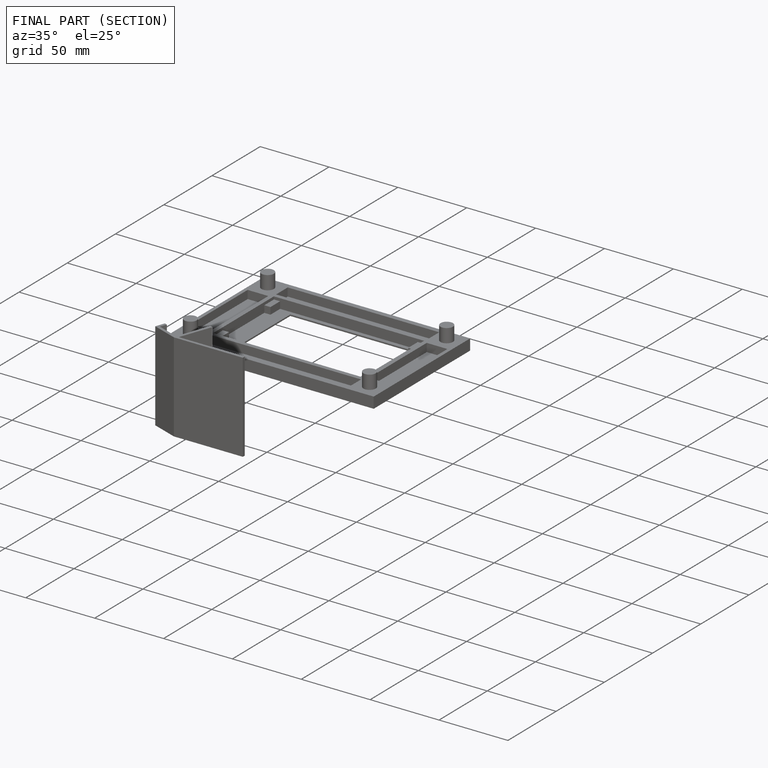
[diagram: finished part — half-section view (interior)]
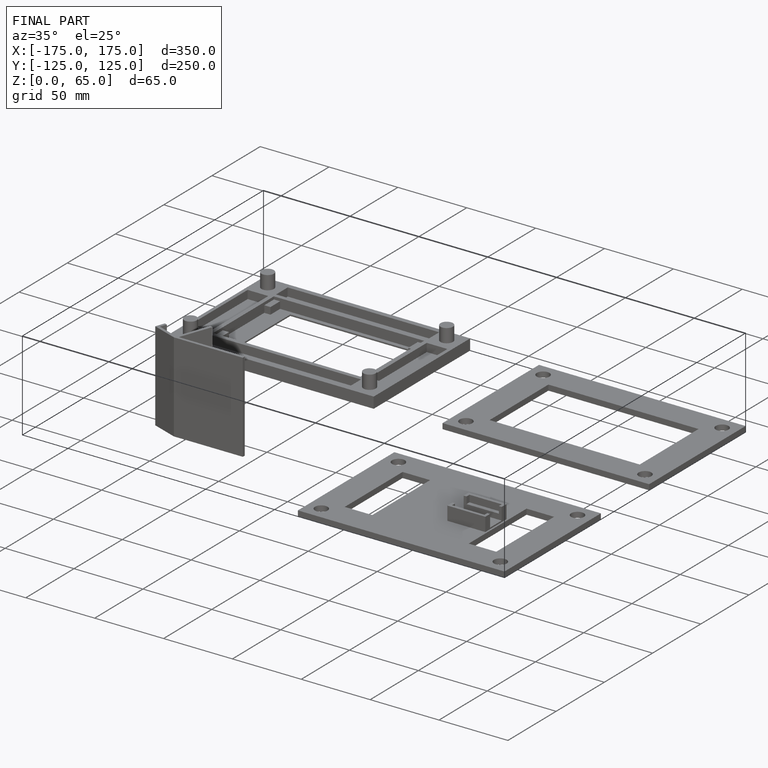
[diagram: finished part — iso view with bounding-box wireframe]
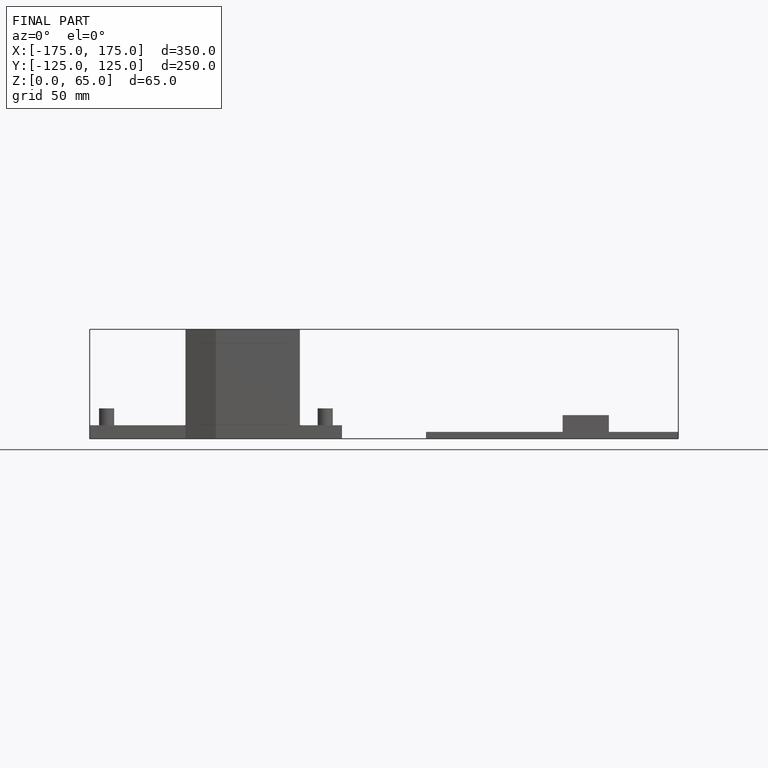
[diagram: finished part — front view with bounding-box wireframe]
